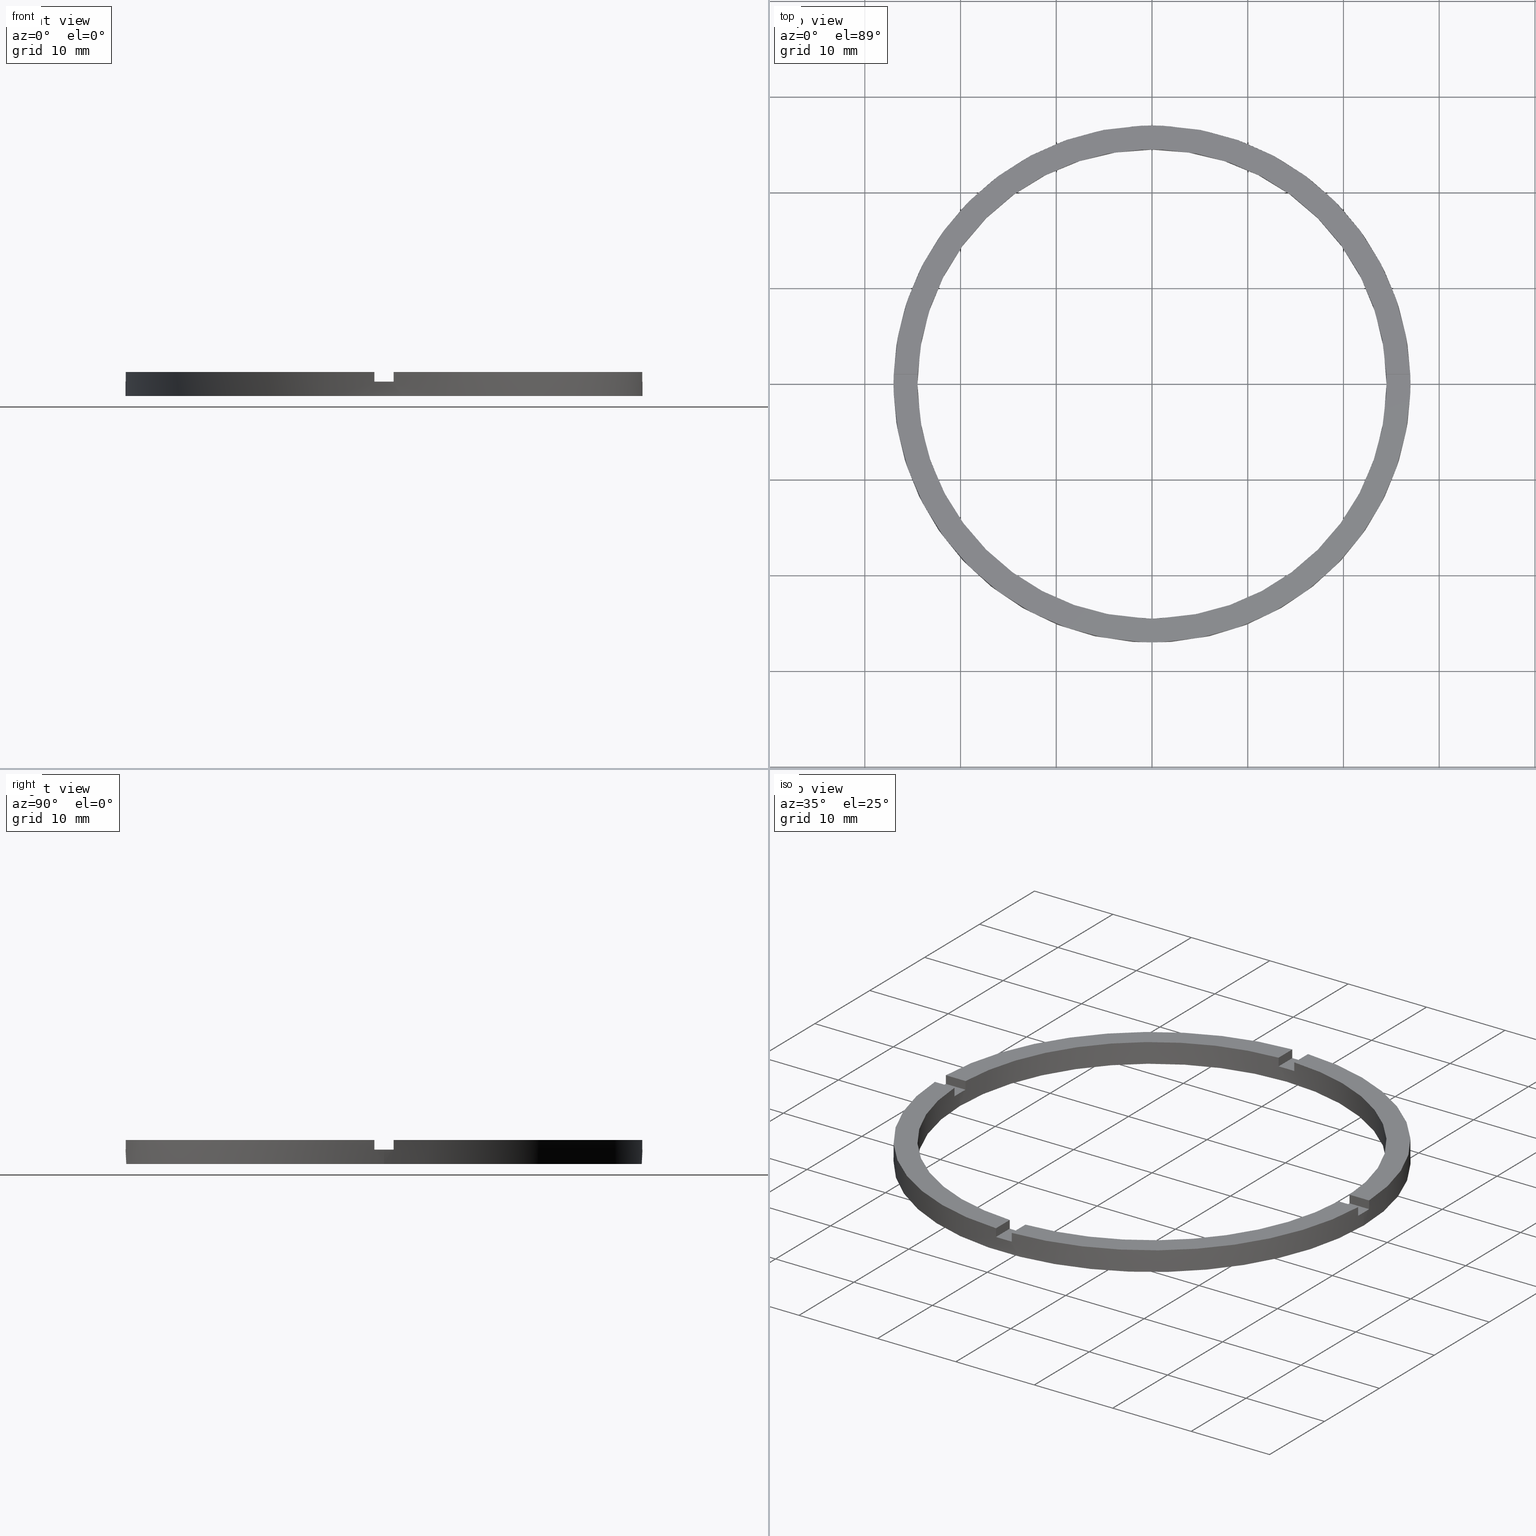
[diagram: canonical four-view strip — front | top / right | iso, engineering-drawing reading convention]
A machine part, canonical four-view strip (front | top / right | iso — engineering-drawing reading convention). The complete STEP part file that produces these views, byte-faithful:
ISO-10303-21;
HEADER;
FILE_DESCRIPTION (( 'STEP AP203' ),
    '1' );
FILE_NAME ('514112.step',
    '2024-12-26T02:38:39',
    ( 'MSI' ),
    ( '' ),
    'SwSTEP 2.0',
    'SolidWorks 2020',
    '' );
FILE_SCHEMA (( 'CONFIG_CONTROL_DESIGN' ));
ENDSEC;

DATA;
#1 = CARTESIAN_POINT ( 'NONE',  ( 27.00000000000000000, 3.306546357697853733E-15, 0.000000000000000000 ) ) ;
#2 = CARTESIAN_POINT ( 'NONE',  ( -26.98147512646408330, 0.9999999999999733546, 2.500000000000000000 ) ) ;
#3 = EDGE_CURVE ( 'NONE', #323, #181, #574, .T. ) ;
#4 = DIRECTION ( 'NONE',  ( 1.000000000000000000, 4.336808689942018352E-17, 0.000000000000000000 ) ) ;
#5 = CARTESIAN_POINT ( 'NONE',  ( 0.000000000000000000, 0.000000000000000000, 1.500000000000000000 ) ) ;
#6 = DIRECTION ( 'NONE',  ( -0.000000000000000000, -0.000000000000000000, -1.000000000000000000 ) ) ;
#7 = CARTESIAN_POINT ( 'NONE',  ( 16.99999999999999289, 0.9999999999998423483, 1.500000000000000000 ) ) ;
#8 = AXIS2_PLACEMENT_3D ( 'NONE', #658, #243, #777 ) ;
#9 = CARTESIAN_POINT ( 'NONE',  ( -27.00000000000000000, 0.000000000000000000, 0.000000000000000000 ) ) ;
#10 = ORIENTED_EDGE ( 'NONE', *, *, #400, .F. ) ;
#11 = CARTESIAN_POINT ( 'NONE',  ( -24.50000000000000000, 0.000000000000000000, 1.500000000000000000 ) ) ;
#12 = ORIENTED_EDGE ( 'NONE', *, *, #577, .T. ) ;
#13 = DIRECTION ( 'NONE',  ( 0.000000000000000000, 0.000000000000000000, -1.000000000000000000 ) ) ;
#14 = DIRECTION ( 'NONE',  ( 0.000000000000000000, 1.000000000000000000, 0.000000000000000000 ) ) ;
#15 = MECHANICAL_CONTEXT ( 'NONE', #71, 'mechanical' ) ;
#16 = DIRECTION ( 'NONE',  ( 1.301042606982605567E-16, -1.000000000000000000, 0.000000000000000000 ) ) ;
#17 = CARTESIAN_POINT ( 'NONE',  ( 0.9999999999999735767, 26.98147512646408330, 2.500000000000000000 ) ) ;
#18 = DIRECTION ( 'NONE',  ( -0.000000000000000000, -1.000000000000000000, -0.000000000000000000 ) ) ;
#19 = ADVANCED_FACE ( 'NONE', ( #45 ), #486, .T. ) ;
#20 = ORIENTED_EDGE ( 'NONE', *, *, #155, .F. ) ;
#21 = ORIENTED_EDGE ( 'NONE', *, *, #646, .T. ) ;
#22 = CARTESIAN_POINT ( 'NONE',  ( -17.00000000000018474, -1.000000000000024869, 1.500000000000000000 ) ) ;
#23 = VERTEX_POINT ( 'NONE', #623 ) ;
#24 = EDGE_CURVE ( 'NONE', #478, #192, #46, .T. ) ;
#25 = AXIS2_PLACEMENT_3D ( 'NONE', #283, #450, #668 ) ;
#26 = DIRECTION ( 'NONE',  ( 0.000000000000000000, -0.000000000000000000, 1.000000000000000000 ) ) ;
#27 = EDGE_CURVE ( 'NONE', #605, #613, #328, .T. ) ;
#28 = CARTESIAN_POINT ( 'NONE',  ( 0.000000000000000000, 0.000000000000000000, 1.500000000000000000 ) ) ;
#29 = DIRECTION ( 'NONE',  ( 1.000000000000000000, 4.336808689942018352E-17, 0.000000000000000000 ) ) ;
#30 = EDGE_CURVE ( 'NONE', #583, #446, #315, .T. ) ;
#31 = EDGE_CURVE ( 'NONE', #613, #605, #335, .T. ) ;
#32 = ORIENTED_EDGE ( 'NONE', *, *, #523, .F. ) ;
#33 = EDGE_CURVE ( 'NONE', #310, #81, #68, .T. ) ;
#34 = CARTESIAN_POINT ( 'NONE',  ( 0.000000000000000000, 0.000000000000000000, 1.500000000000000000 ) ) ;
#35 = AXIS2_PLACEMENT_3D ( 'NONE', #533, #575, #538 ) ;
#36 = CARTESIAN_POINT ( 'NONE',  ( -26.98147512646407975, -1.000000000000026645, 1.500000000000000000 ) ) ;
#37 = LINE ( 'NONE', #642, #61 ) ;
#38 = PRODUCT_DEFINITION_SHAPE ( 'NONE', 'NONE',  #197 ) ;
#39 = CARTESIAN_POINT ( 'NONE',  ( 0.000000000000000000, 0.000000000000000000, 1.500000000000000000 ) ) ;
#40 = CC_DESIGN_PERSON_AND_ORGANIZATION_ASSIGNMENT ( #627, #561, ( #536 ) ) ;
#41 = VECTOR ( 'NONE', #556, 1000.000000000000000 ) ;
#42 = DIRECTION ( 'NONE',  ( 1.000000000000000000, 0.000000000000000000, 0.000000000000000000 ) ) ;
#43 = CARTESIAN_POINT ( 'NONE',  ( -24.47958332978729601, -1.000000000000026201, 2.500000000000000000 ) ) ;
#44 = ORIENTED_EDGE ( 'NONE', *, *, #31, .F. ) ;
#45 = FACE_OUTER_BOUND ( 'NONE', #462, .T. ) ;
#46 = LINE ( 'NONE', #325, #76 ) ;
#47 = DIRECTION ( 'NONE',  ( -0.000000000000000000, -0.000000000000000000, -1.000000000000000000 ) ) ;
#48 = DIRECTION ( 'NONE',  ( 0.000000000000000000, 0.000000000000000000, 1.000000000000000000 ) ) ;
#49 = ORIENTED_EDGE ( 'NONE', *, *, #408, .T. ) ;
#50 = CARTESIAN_POINT ( 'NONE',  ( 0.000000000000000000, 0.000000000000000000, 2.500000000000000000 ) ) ;
#51 = CIRCLE ( 'NONE', #256, 24.50000000000000000 ) ;
#52 = CARTESIAN_POINT ( 'NONE',  ( -1.000000000000026423, 17.00000000000000000, 2.500000000000000000 ) ) ;
#53 = VECTOR ( 'NONE', #123, 1000.000000000000000 ) ;
#54 = APPROVAL_ROLE ( '' ) ;
#55 = ORIENTED_EDGE ( 'NONE', *, *, #693, .T. ) ;
#56 = AXIS2_PLACEMENT_3D ( 'NONE', #5, #206, #505 ) ;
#57 = DIRECTION ( 'NONE',  ( 1.000000000000000000, 0.000000000000000000, 0.000000000000000000 ) ) ;
#58 = ORIENTED_EDGE ( 'NONE', *, *, #274, .F. ) ;
#59 = ORIENTED_EDGE ( 'NONE', *, *, #413, .T. ) ;
#60 = PLANE ( 'NONE',  #351 ) ;
#61 = VECTOR ( 'NONE', #581, 1000.000000000000000 ) ;
#62 = VERTEX_POINT ( 'NONE', #403 ) ;
#63 = EDGE_LOOP ( 'NONE', ( #535, #179, #326, #308 ) ) ;
#64 = EDGE_CURVE ( 'NONE', #332, #717, #37, .T. ) ;
#65 = AXIS2_PLACEMENT_3D ( 'NONE', #164, #648, #276 ) ;
#66 = CARTESIAN_POINT ( 'NONE',  ( 0.000000000000000000, 0.000000000000000000, 2.500000000000000000 ) ) ;
#67 = ORIENTED_EDGE ( 'NONE', *, *, #111, .F. ) ;
#68 = CIRCLE ( 'NONE', #767, 27.00000000000000000 ) ;
#69 = EDGE_CURVE ( 'NONE', #717, #604, #51, .T. ) ;
#70 = ORIENTED_EDGE ( 'NONE', *, *, #748, .F. ) ;
#71 = APPLICATION_CONTEXT ( 'configuration controlled 3d designs of mechanical parts and assemblies' ) ;
#72 = ORIENTED_EDGE ( 'NONE', *, *, #513, .T. ) ;
#73 = PLANE ( 'NONE',  #284 ) ;
#74 = EDGE_LOOP ( 'NONE', ( #307, #433, #269, #570 ) ) ;
#75 = ORIENTED_EDGE ( 'NONE', *, *, #241, .T. ) ;
#76 = VECTOR ( 'NONE', #758, 1000.000000000000000 ) ;
#77 = CARTESIAN_POINT ( 'NONE',  ( 16.99999999999999289, 0.9999999999998423483, 2.500000000000000000 ) ) ;
#78 = DIRECTION ( 'NONE',  ( 0.000000000000000000, 0.000000000000000000, 1.000000000000000000 ) ) ;
#79 = CIRCLE ( 'NONE', #107, 24.50000000000000000 ) ;
#80 = DIRECTION ( 'NONE',  ( -0.000000000000000000, -0.000000000000000000, -1.000000000000000000 ) ) ;
#81 = VERTEX_POINT ( 'NONE', #490 ) ;
#82 = MANIFOLD_SOLID_BREP ( '�г�-����1', #441 ) ;
#83 = ORIENTED_EDGE ( 'NONE', *, *, #87, .F. ) ;
#84 = EDGE_CURVE ( 'NONE', #601, #713, #79, .T. ) ;
#85 = ORIENTED_EDGE ( 'NONE', *, *, #707, .F. ) ;
#86 = ORIENTED_EDGE ( 'NONE', *, *, #219, .F. ) ;
#87 = EDGE_CURVE ( 'NONE', #323, #23, #337, .T. ) ;
#88 = ORIENTED_EDGE ( 'NONE', *, *, #278, .T. ) ;
#89 = ORIENTED_EDGE ( 'NONE', *, *, #707, .T. ) ;
#90 = ORIENTED_EDGE ( 'NONE', *, *, #394, .T. ) ;
#91 = ADVANCED_FACE ( 'NONE', ( #582 ), #537, .F. ) ;
#92 = ORIENTED_EDGE ( 'NONE', *, *, #408, .F. ) ;
#93 = DIRECTION ( 'NONE',  ( 1.734723475976807341E-16, -1.000000000000000000, 0.000000000000000000 ) ) ;
#94 = VERTEX_POINT ( 'NONE', #294 ) ;
#95 = AXIS2_PLACEMENT_3D ( 'NONE', #228, #517, #629 ) ;
#96 = ADVANCED_FACE ( 'NONE', ( #603 ), #496, .F. ) ;
#97 = DIRECTION ( 'NONE',  ( -0.000000000000000000, -0.000000000000000000, -1.000000000000000000 ) ) ;
#98 = PERSON_AND_ORGANIZATION ( #763, #113 ) ;
#99 = LOCAL_TIME ( 10, 38, 39.00000000000000000, #625 ) ;
#100 = DIRECTION ( 'NONE',  ( 0.000000000000000000, 0.000000000000000000, 1.000000000000000000 ) ) ;
#101 = APPROVAL_PERSON_ORGANIZATION ( #364, #226, #563 ) ;
#102 = CARTESIAN_POINT ( 'NONE',  ( 24.47958332978728890, -1.000000000000157208, 2.500000000000000000 ) ) ;
#103 = COORDINATED_UNIVERSAL_TIME_OFFSET ( 8, 0, .AHEAD. ) ;
#104 = DATE_AND_TIME ( #357, #99 ) ;
#105 = FACE_OUTER_BOUND ( 'NONE', #745, .T. ) ;
#106 = CARTESIAN_POINT ( 'NONE',  ( -1.000000000000026423, 17.00000000000000000, 1.500000000000000000 ) ) ;
#107 = AXIS2_PLACEMENT_3D ( 'NONE', #724, #528, #770 ) ;
#108 = COORDINATED_UNIVERSAL_TIME_OFFSET ( 8, 0, .AHEAD. ) ;
#109 = DIRECTION ( 'NONE',  ( 1.000000000000000000, 1.301042606982605567E-16, 0.000000000000000000 ) ) ;
#110 = LINE ( 'NONE', #167, #633 ) ;
#111 = EDGE_CURVE ( 'NONE', #202, #199, #572, .T. ) ;
#112 = PLANE ( 'NONE',  #742 ) ;
#113 = ORGANIZATION ( 'δָ��', 'δָ��', '' ) ;
#114 = AXIS2_PLACEMENT_3D ( 'NONE', #227, #373, #363 ) ;
#115 = DIRECTION ( 'NONE',  ( 0.000000000000000000, 0.000000000000000000, 1.000000000000000000 ) ) ;
#116 = APPROVAL_DATE_TIME ( #640, #634 ) ;
#117 = DIRECTION ( 'NONE',  ( 1.000000000000000000, 0.000000000000000000, 0.000000000000000000 ) ) ;
#118 = CARTESIAN_POINT ( 'NONE',  ( 26.98147512646408686, 0.9999999999998427924, 1.500000000000000000 ) ) ;
#119 = LOCAL_TIME ( 10, 38, 39.00000000000000000, #108 ) ;
#120 = PERSON_AND_ORGANIZATION ( #763, #113 ) ;
#121 = EDGE_CURVE ( 'NONE', #202, #613, #339, .T. ) ;
#122 = LOCAL_TIME ( 10, 38, 39.00000000000000000, #355 ) ;
#123 = DIRECTION ( 'NONE',  ( -0.000000000000000000, -0.000000000000000000, -1.000000000000000000 ) ) ;
#124 = DIRECTION ( 'NONE',  ( 0.000000000000000000, 0.000000000000000000, 1.000000000000000000 ) ) ;
#125 = EDGE_CURVE ( 'NONE', #708, #446, #304, .T. ) ;
#126 = PERSON_AND_ORGANIZATION ( #763, #113 ) ;
#127 = CARTESIAN_POINT ( 'NONE',  ( -1.000000000000026423, 24.47958332978729601, 2.500000000000000000 ) ) ;
#128 = CARTESIAN_POINT ( 'NONE',  ( 0.9999999999998400169, -26.98147512646408686, 2.500000000000000000 ) ) ;
#129 = LINE ( 'NONE', #491, #392 ) ;
#130 = LINE ( 'NONE', #257, #393 ) ;
#131 = CARTESIAN_POINT ( 'NONE',  ( 0.000000000000000000, 0.000000000000000000, 0.000000000000000000 ) ) ;
#132 = LINE ( 'NONE', #759, #681 ) ;
#133 = CARTESIAN_POINT ( 'NONE',  ( -17.00000000000018474, 0.9999999999999751310, 1.500000000000000000 ) ) ;
#134 = DIRECTION ( 'NONE',  ( -1.734723475976807341E-16, 1.000000000000000000, 0.000000000000000000 ) ) ;
#135 = FACE_OUTER_BOUND ( 'NONE', #473, .T. ) ;
#136 = DIRECTION ( 'NONE',  ( -1.000000000000000000, -4.336808689942017120E-17, 0.000000000000000000 ) ) ;
#137 = LINE ( 'NONE', #519, #659 ) ;
#138 = VECTOR ( 'NONE', #461, 1000.000000000000000 ) ;
#139 = CC_DESIGN_SECURITY_CLASSIFICATION ( #666, ( #536 ) ) ;
#140 = CARTESIAN_POINT ( 'NONE',  ( 0.000000000000000000, 0.000000000000000000, 2.500000000000000000 ) ) ;
#141 = VECTOR ( 'NONE', #6, 1000.000000000000000 ) ;
#142 = LINE ( 'NONE', #277, #156 ) ;
#143 = DIRECTION ( 'NONE',  ( 0.000000000000000000, 0.000000000000000000, 1.000000000000000000 ) ) ;
#144 = LINE ( 'NONE', #547, #153 ) ;
#145 = APPROVAL_STATUS ( 'not_yet_approved' ) ;
#146 = EDGE_CURVE ( 'NONE', #62, #322, #306, .T. ) ;
#147 = FACE_OUTER_BOUND ( 'NONE', #599, .T. ) ;
#148 = CIRCLE ( 'NONE', #261, 27.00000000000000000 ) ;
#149 = LINE ( 'NONE', #309, #417 ) ;
#150 = DIRECTION ( 'NONE',  ( 1.000000000000000000, -0.000000000000000000, 0.000000000000000000 ) ) ;
#151 = CYLINDRICAL_SURFACE ( 'NONE', #495, 27.00000000000000000 ) ;
#152 =( LENGTH_UNIT ( ) NAMED_UNIT ( * ) SI_UNIT ( .MILLI., .METRE. ) );
#153 = VECTOR ( 'NONE', #4, 1000.000000000000000 ) ;
#154 = CARTESIAN_POINT ( 'NONE',  ( 0.000000000000000000, 0.000000000000000000, 1.500000000000000000 ) ) ;
#155 = EDGE_CURVE ( 'NONE', #322, #713, #673, .T. ) ;
#156 = VECTOR ( 'NONE', #347, 1000.000000000000000 ) ;
#157 = ADVANCED_FACE ( 'NONE', ( #679 ), #683, .F. ) ;
#158 = LINE ( 'NONE', #499, #415 ) ;
#159 = LINE ( 'NONE', #127, #163 ) ;
#160 = AXIS2_PLACEMENT_3D ( 'NONE', #361, #439, #741 ) ;
#161 = CIRCLE ( 'NONE', #324, 24.50000000000000000 ) ;
#162 = ORIENTED_EDGE ( 'NONE', *, *, #266, .F. ) ;
#163 = VECTOR ( 'NONE', #218, 1000.000000000000000 ) ;
#164 = CARTESIAN_POINT ( 'NONE',  ( 0.000000000000000000, 0.000000000000000000, 0.000000000000000000 ) ) ;
#165 = ORIENTED_EDGE ( 'NONE', *, *, #3, .F. ) ;
#166 = VECTOR ( 'NONE', #16, 1000.000000000000000 ) ;
#167 = CARTESIAN_POINT ( 'NONE',  ( -24.47958332978729601, -1.000000000000026201, 2.500000000000000000 ) ) ;
#168 = AXIS2_PLACEMENT_3D ( 'NONE', #66, #663, #303 ) ;
#169 = VERTEX_POINT ( 'NONE', #504 ) ;
#170 = LINE ( 'NONE', #597, #177 ) ;
#171 = ORIENTED_EDGE ( 'NONE', *, *, #237, .T. ) ;
#172 = FACE_OUTER_BOUND ( 'NONE', #586, .T. ) ;
#173 = ORIENTED_EDGE ( 'NONE', *, *, #748, .T. ) ;
#174 = VECTOR ( 'NONE', #751, 1000.000000000000000 ) ;
#175 = CARTESIAN_POINT ( 'NONE',  ( 0.000000000000000000, 0.000000000000000000, 0.000000000000000000 ) ) ;
#176 = ORIENTED_EDGE ( 'NONE', *, *, #579, .T. ) ;
#177 = VECTOR ( 'NONE', #217, 1000.000000000000000 ) ;
#178 = DIRECTION ( 'NONE',  ( 0.000000000000000000, 0.000000000000000000, 1.000000000000000000 ) ) ;
#179 = ORIENTED_EDGE ( 'NONE', *, *, #778, .T. ) ;
#180 = LINE ( 'NONE', #133, #698 ) ;
#181 = VERTEX_POINT ( 'NONE', #210 ) ;
#182 = CIRCLE ( 'NONE', #755, 24.50000000000000000 ) ;
#183 = PRODUCT_RELATED_PRODUCT_CATEGORY ( 'detail', '', ( #738 ) ) ;
#184 = VERTEX_POINT ( 'NONE', #671 ) ;
#185 = LINE ( 'NONE', #388, #686 ) ;
#186 = DIRECTION ( 'NONE',  ( 0.000000000000000000, 0.000000000000000000, 1.000000000000000000 ) ) ;
#187 = ORIENTED_EDGE ( 'NONE', *, *, #24, .T. ) ;
#188 = CIRCLE ( 'NONE', #114, 27.00000000000000000 ) ;
#189 = ORIENTED_EDGE ( 'NONE', *, *, #554, .F. ) ;
#190 = LINE ( 'NONE', #350, #426 ) ;
#191 = ORIENTED_EDGE ( 'NONE', *, *, #254, .T. ) ;
#192 = VERTEX_POINT ( 'NONE', #290 ) ;
#193 = ORIENTED_EDGE ( 'NONE', *, *, #518, .F. ) ;
#194 = VERTEX_POINT ( 'NONE', #128 ) ;
#195 = CARTESIAN_POINT ( 'NONE',  ( 0.000000000000000000, 0.000000000000000000, 2.500000000000000000 ) ) ;
#196 = ORIENTED_EDGE ( 'NONE', *, *, #27, .T. ) ;
#197 = PRODUCT_DEFINITION ( 'δ֪', '', #536, #534 ) ;
#198 = ORIENTED_EDGE ( 'NONE', *, *, #242, .T. ) ;
#199 = VERTEX_POINT ( 'NONE', #118 ) ;
#200 = VERTEX_POINT ( 'NONE', #781 ) ;
#201 = DIRECTION ( 'NONE',  ( -0.000000000000000000, -0.000000000000000000, -1.000000000000000000 ) ) ;
#202 = VERTEX_POINT ( 'NONE', #358 ) ;
#203 = EDGE_CURVE ( 'NONE', #446, #184, #144, .T. ) ;
#204 = ORIENTED_EDGE ( 'NONE', *, *, #579, .F. ) ;
#205 = EDGE_LOOP ( 'NONE', ( #279, #173, #20, #343 ) ) ;
#206 = DIRECTION ( 'NONE',  ( 0.000000000000000000, 0.000000000000000000, 1.000000000000000000 ) ) ;
#207 = ORIENTED_EDGE ( 'NONE', *, *, #548, .T. ) ;
#208 = ORIENTED_EDGE ( 'NONE', *, *, #543, .T. ) ;
#209 = PLANE ( 'NONE',  #8 ) ;
#210 = CARTESIAN_POINT ( 'NONE',  ( 0.9999999999999735767, 26.98147512646408330, 2.500000000000000000 ) ) ;
#211 = ORIENTED_EDGE ( 'NONE', *, *, #84, .T. ) ;
#212 = ORIENTED_EDGE ( 'NONE', *, *, #234, .F. ) ;
#213 = EDGE_LOOP ( 'NONE', ( #329, #587, #171, #725, #12, #220, #730, #189, #319, #193, #435, #196 ) ) ;
#214 = EDGE_CURVE ( 'NONE', #578, #181, #649, .T. ) ;
#215 = CARTESIAN_POINT ( 'NONE',  ( -17.00000000000018474, -1.000000000000024869, 1.500000000000000000 ) ) ;
#216 = VERTEX_POINT ( 'NONE', #43 ) ;
#217 = DIRECTION ( 'NONE',  ( -1.301042606982605567E-16, 1.000000000000000000, -0.000000000000000000 ) ) ;
#218 = DIRECTION ( 'NONE',  ( -0.000000000000000000, -0.000000000000000000, -1.000000000000000000 ) ) ;
#219 = EDGE_CURVE ( 'NONE', #330, #192, #149, .T. ) ;
#220 = ORIENTED_EDGE ( 'NONE', *, *, #687, .F. ) ;
#221 = EDGE_CURVE ( 'NONE', #199, #593, #402, .T. ) ;
#222 = PLANE ( 'NONE',  #168 ) ;
#223 = CARTESIAN_POINT ( 'NONE',  ( 0.000000000000000000, 0.000000000000000000, 2.500000000000000000 ) ) ;
#224 = AXIS2_PLACEMENT_3D ( 'NONE', #779, #440, #285 ) ;
#225 = DIRECTION ( 'NONE',  ( 1.000000000000000000, 0.000000000000000000, -0.000000000000000000 ) ) ;
#226 = APPROVAL ( #377, 'δָ��' ) ;
#227 = CARTESIAN_POINT ( 'NONE',  ( 0.000000000000000000, 0.000000000000000000, 2.500000000000000000 ) ) ;
#228 = CARTESIAN_POINT ( 'NONE',  ( 0.000000000000000000, 0.000000000000000000, 1.500000000000000000 ) ) ;
#229 = AXIS2_PLACEMENT_3D ( 'NONE', #247, #451, #501 ) ;
#230 = ADVANCED_FACE ( 'NONE', ( #407 ), #375, .F. ) ;
#231 = CALENDAR_DATE ( 2024, 26, 12 ) ;
#232 = CARTESIAN_POINT ( 'NONE',  ( 0.000000000000000000, 0.000000000000000000, 2.500000000000000000 ) ) ;
#233 = ORIENTED_EDGE ( 'NONE', *, *, #254, .F. ) ;
#234 = EDGE_CURVE ( 'NONE', #578, #169, #401, .T. ) ;
#235 = AXIS2_PLACEMENT_3D ( 'NONE', #252, #297, #249 ) ;
#236 = ADVANCED_FACE ( 'NONE', ( #647 ), #60, .F. ) ;
#237 = EDGE_CURVE ( 'NONE', #455, #184, #130, .T. ) ;
#238 = PLANE ( 'NONE',  #559 ) ;
#239 = DIRECTION ( 'NONE',  ( 1.000000000000000000, 0.000000000000000000, 0.000000000000000000 ) ) ;
#240 = APPROVAL_DATE_TIME ( #766, #226 ) ;
#241 = EDGE_CURVE ( 'NONE', #444, #246, #412, .T. ) ;
#242 = EDGE_CURVE ( 'NONE', #94, #181, #132, .T. ) ;
#243 = DIRECTION ( 'NONE',  ( 4.336808689942018352E-17, -1.000000000000000000, 0.000000000000000000 ) ) ;
#244 = EDGE_CURVE ( 'NONE', #200, #722, #137, .T. ) ;
#245 = CARTESIAN_POINT ( 'NONE',  ( -17.00000000000018474, 0.9999999999999751310, 2.500000000000000000 ) ) ;
#246 = VERTEX_POINT ( 'NONE', #265 ) ;
#247 = CARTESIAN_POINT ( 'NONE',  ( 0.000000000000000000, 0.000000000000000000, 2.500000000000000000 ) ) ;
#248 = DIRECTION ( 'NONE',  ( 0.000000000000000000, 0.000000000000000000, 1.000000000000000000 ) ) ;
#249 = DIRECTION ( 'NONE',  ( 1.000000000000000000, 0.000000000000000000, 0.000000000000000000 ) ) ;
#250 = DIRECTION ( 'NONE',  ( 1.000000000000000000, 0.000000000000000000, 0.000000000000000000 ) ) ;
#251 = CARTESIAN_POINT ( 'NONE',  ( -24.50000000000000000, 0.000000000000000000, 2.500000000000000000 ) ) ;
#252 = CARTESIAN_POINT ( 'NONE',  ( 0.000000000000000000, 0.000000000000000000, 2.500000000000000000 ) ) ;
#253 = AXIS2_PLACEMENT_3D ( 'NONE', #154, #483, #268 ) ;
#254 = EDGE_CURVE ( 'NONE', #348, #478, #664, .T. ) ;
#255 = DIRECTION ( 'NONE',  ( 1.000000000000000000, 0.000000000000000000, 0.000000000000000000 ) ) ;
#256 = AXIS2_PLACEMENT_3D ( 'NONE', #175, #143, #732 ) ;
#257 = CARTESIAN_POINT ( 'NONE',  ( 26.98147512646407620, -1.000000000000157208, 2.500000000000000000 ) ) ;
#258 = ADVANCED_FACE ( 'NONE', ( #147 ), #740, .T. ) ;
#259 = CARTESIAN_POINT ( 'NONE',  ( -1.000000000000026423, 24.47958332978729601, 1.500000000000000000 ) ) ;
#260 = EDGE_CURVE ( 'NONE', #722, #716, #661, .T. ) ;
#261 = AXIS2_PLACEMENT_3D ( 'NONE', #195, #591, #117 ) ;
#262 = DIRECTION ( 'NONE',  ( -1.000000000000000000, -4.336808689942017120E-17, -0.000000000000000000 ) ) ;
#263 = DIRECTION ( 'NONE',  ( 0.000000000000000000, 0.000000000000000000, 1.000000000000000000 ) ) ;
#264 = ORIENTED_EDGE ( 'NONE', *, *, #652, .T. ) ;
#265 = CARTESIAN_POINT ( 'NONE',  ( -1.000000000000026423, 24.47958332978729601, 2.500000000000000000 ) ) ;
#266 = EDGE_CURVE ( 'NONE', #62, #216, #129, .T. ) ;
#267 = PERSON_AND_ORGANIZATION_ROLE ( 'creator' ) ;
#268 = DIRECTION ( 'NONE',  ( 1.000000000000000000, 0.000000000000000000, -0.000000000000000000 ) ) ;
#269 = ORIENTED_EDGE ( 'NONE', *, *, #203, .T. ) ;
#270 = APPROVAL_ROLE ( '' ) ;
#271 = DIRECTION ( 'NONE',  ( 1.000000000000000000, 1.734723475976807341E-16, 0.000000000000000000 ) ) ;
#272 = AXIS2_PLACEMENT_3D ( 'NONE', #428, #124, #560 ) ;
#273 = DIRECTION ( 'NONE',  ( 0.000000000000000000, 0.000000000000000000, 1.000000000000000000 ) ) ;
#274 = EDGE_CURVE ( 'NONE', #604, #717, #161, .T. ) ;
#275 = ORIENTED_EDGE ( 'NONE', *, *, #242, .F. ) ;
#276 = DIRECTION ( 'NONE',  ( 1.000000000000000000, 0.000000000000000000, 0.000000000000000000 ) ) ;
#277 = CARTESIAN_POINT ( 'NONE',  ( -1.000000000000026423, 26.98147512646407975, 2.500000000000000000 ) ) ;
#278 = EDGE_CURVE ( 'NONE', #444, #23, #142, .T. ) ;
#279 = ORIENTED_EDGE ( 'NONE', *, *, #266, .T. ) ;
#280 = ORIENTED_EDGE ( 'NONE', *, *, #543, .F. ) ;
#281 = AXIS2_PLACEMENT_3D ( 'NONE', #34, #443, #780 ) ;
#282 = CARTESIAN_POINT ( 'NONE',  ( -1.000000000000160316, -24.47958332978728890, 1.500000000000000000 ) ) ;
#283 = CARTESIAN_POINT ( 'NONE',  ( -1.000000000000161426, -17.00000000000018119, 1.500000000000000000 ) ) ;
#284 = AXIS2_PLACEMENT_3D ( 'NONE', #299, #553, #225 ) ;
#285 = DIRECTION ( 'NONE',  ( 1.000000000000000000, 0.000000000000000000, 0.000000000000000000 ) ) ;
#286 = DIRECTION ( 'NONE',  ( 1.000000000000000000, 0.000000000000000000, 0.000000000000000000 ) ) ;
#287 = DIRECTION ( 'NONE',  ( -1.000000000000000000, -1.734723475976807341E-16, 0.000000000000000000 ) ) ;
#288 = EDGE_CURVE ( 'NONE', #194, #184, #148, .T. ) ;
#289 = CARTESIAN_POINT ( 'NONE',  ( 0.000000000000000000, 0.000000000000000000, 0.000000000000000000 ) ) ;
#290 = CARTESIAN_POINT ( 'NONE',  ( -1.000000000000160094, -26.98147512646407620, 2.500000000000000000 ) ) ;
#291 = ORIENTED_EDGE ( 'NONE', *, *, #577, .F. ) ;
#292 = AXIS2_PLACEMENT_3D ( 'NONE', #131, #760, #305 ) ;
#293 = EDGE_LOOP ( 'NONE', ( #466, #90, #280, #89 ) ) ;
#294 = CARTESIAN_POINT ( 'NONE',  ( 0.9999999999999735767, 24.47958332978729601, 2.500000000000000000 ) ) ;
#295 = DIRECTION ( 'NONE',  ( 1.000000000000000000, 0.000000000000000000, -0.000000000000000000 ) ) ;
#296 = DIRECTION ( 'NONE',  ( -1.000000000000000000, -1.734723475976807341E-16, 0.000000000000000000 ) ) ;
#297 = DIRECTION ( 'NONE',  ( 0.000000000000000000, 0.000000000000000000, 1.000000000000000000 ) ) ;
#298 = APPLICATION_PROTOCOL_DEFINITION ( 'international standard', 'config_control_design', 1994, #71 ) ;
#299 = CARTESIAN_POINT ( 'NONE',  ( 0.000000000000000000, 0.000000000000000000, 2.500000000000000000 ) ) ;
#300 = DIRECTION ( 'NONE',  ( -1.000000000000000000, -1.734723475976807341E-16, 0.000000000000000000 ) ) ;
#301 = CC_DESIGN_PERSON_AND_ORGANIZATION_ASSIGNMENT ( #622, #267, ( #536 ) ) ;
#302 = DIRECTION ( 'NONE',  ( -4.336808689942017120E-17, 1.000000000000000000, 0.000000000000000000 ) ) ;
#303 = DIRECTION ( 'NONE',  ( 1.000000000000000000, 0.000000000000000000, -0.000000000000000000 ) ) ;
#304 = CIRCLE ( 'NONE', #540, 24.50000000000000000 ) ;
#305 = DIRECTION ( 'NONE',  ( 1.000000000000000000, 0.000000000000000000, 0.000000000000000000 ) ) ;
#306 = LINE ( 'NONE', #354, #585 ) ;
#307 = ORIENTED_EDGE ( 'NONE', *, *, #413, .F. ) ;
#308 = ORIENTED_EDGE ( 'NONE', *, *, #312, .F. ) ;
#309 = CARTESIAN_POINT ( 'NONE',  ( -1.000000000000160094, -26.98147512646407620, 2.500000000000000000 ) ) ;
#310 = VERTEX_POINT ( 'NONE', #493 ) ;
#311 = CARTESIAN_POINT ( 'NONE',  ( -1.000000000000160316, -24.47958332978728890, 2.500000000000000000 ) ) ;
#312 = EDGE_CURVE ( 'NONE', #578, #199, #405, .T. ) ;
#313 = APPLICATION_PROTOCOL_DEFINITION ( 'international standard', 'config_control_design', 1994, #765 ) ;
#314 = ORIENTED_EDGE ( 'NONE', *, *, #476, .F. ) ;
#315 = LINE ( 'NONE', #573, #594 ) ;
#316 = CARTESIAN_POINT ( 'NONE',  ( -26.98147512646408330, 0.9999999999999733546, 2.500000000000000000 ) ) ;
#317 = EDGE_CURVE ( 'NONE', #482, #531, #667, .T. ) ;
#318 = ORIENTED_EDGE ( 'NONE', *, *, #30, .F. ) ;
#319 = ORIENTED_EDGE ( 'NONE', *, *, #146, .T. ) ;
#320 = ADVANCED_FACE ( 'NONE', ( #669 ), #209, .F. ) ;
#321 = ORIENTED_EDGE ( 'NONE', *, *, #203, .F. ) ;
#322 = VERTEX_POINT ( 'NONE', #36 ) ;
#323 = VERTEX_POINT ( 'NONE', #356 ) ;
#324 = AXIS2_PLACEMENT_3D ( 'NONE', #289, #432, #42 ) ;
#325 = CARTESIAN_POINT ( 'NONE',  ( -1.000000000000161426, -17.00000000000018119, 2.500000000000000000 ) ) ;
#326 = ORIENTED_EDGE ( 'NONE', *, *, #221, .F. ) ;
#327 = CARTESIAN_POINT ( 'NONE',  ( 0.000000000000000000, 0.000000000000000000, 2.500000000000000000 ) ) ;
#328 = CIRCLE ( 'NONE', #396, 27.00000000000000000 ) ;
#329 = ORIENTED_EDGE ( 'NONE', *, *, #121, .F. ) ;
#330 = VERTEX_POINT ( 'NONE', #406 ) ;
#331 = EDGE_LOOP ( 'NONE', ( #602, #55, #198, #165 ) ) ;
#332 = VERTEX_POINT ( 'NONE', #749 ) ;
#333 = AXIS2_PLACEMENT_3D ( 'NONE', #232, #97, #526 ) ;
#334 = ORIENTED_EDGE ( 'NONE', *, *, #260, .F. ) ;
#335 = CIRCLE ( 'NONE', #65, 27.00000000000000000 ) ;
#336 = ADVANCED_FACE ( 'NONE', ( #389 ), #112, .F. ) ;
#337 = CIRCLE ( 'NONE', #458, 27.00000000000000000 ) ;
#338 = CARTESIAN_POINT ( 'NONE',  ( 0.000000000000000000, 0.000000000000000000, 1.500000000000000000 ) ) ;
#339 = LINE ( 'NONE', #545, #53 ) ;
#340 = ORIENTED_EDGE ( 'NONE', *, *, #33, .T. ) ;
#341 = DIRECTION ( 'NONE',  ( 1.000000000000000000, 0.000000000000000000, 0.000000000000000000 ) ) ;
#342 = ORIENTED_EDGE ( 'NONE', *, *, #84, .F. ) ;
#343 = ORIENTED_EDGE ( 'NONE', *, *, #146, .F. ) ;
#344 = ORIENTED_EDGE ( 'NONE', *, *, #69, .F. ) ;
#345 = AXIS2_PLACEMENT_3D ( 'NONE', #718, #273, #488 ) ;
#346 = ORIENTED_EDGE ( 'NONE', *, *, #244, .F. ) ;
#347 = DIRECTION ( 'NONE',  ( -0.000000000000000000, -0.000000000000000000, -1.000000000000000000 ) ) ;
#348 = VERTEX_POINT ( 'NONE', #282 ) ;
#349 = EDGE_CURVE ( 'NONE', #310, #716, #409, .T. ) ;
#350 = CARTESIAN_POINT ( 'NONE',  ( 0.9999999999999735767, 17.00000000000000000, 1.500000000000000000 ) ) ;
#351 = AXIS2_PLACEMENT_3D ( 'NONE', #7, #302, #136 ) ;
#352 = DIRECTION ( 'NONE',  ( -1.000000000000000000, 0.000000000000000000, 0.000000000000000000 ) ) ;
#353 = CYLINDRICAL_SURFACE ( 'NONE', #333, 24.50000000000000000 ) ;
#354 = CARTESIAN_POINT ( 'NONE',  ( -26.98147512646407975, -1.000000000000026645, 2.500000000000000000 ) ) ;
#355 = COORDINATED_UNIVERSAL_TIME_OFFSET ( 8, 0, .AHEAD. ) ;
#356 = CARTESIAN_POINT ( 'NONE',  ( 0.9999999999999735767, 26.98147512646408330, 1.500000000000000000 ) ) ;
#357 = CALENDAR_DATE ( 2024, 26, 12 ) ;
#358 = CARTESIAN_POINT ( 'NONE',  ( 27.00000000000000000, 3.306546357697853733E-15, 1.500000000000000000 ) ) ;
#359 = DATE_AND_TIME ( #380, #119 ) ;
#360 = APPROVAL_DATE_TIME ( #621, #390 ) ;
#361 = CARTESIAN_POINT ( 'NONE',  ( 0.000000000000000000, 0.000000000000000000, 1.500000000000000000 ) ) ;
#362 = LOCAL_TIME ( 10, 38, 39.00000000000000000, #103 ) ;
#363 = DIRECTION ( 'NONE',  ( 1.000000000000000000, 0.000000000000000000, 0.000000000000000000 ) ) ;
#364 = PERSON_AND_ORGANIZATION ( #763, #113 ) ;
#365 = ADVANCED_BREP_SHAPE_REPRESENTATION ( '514112', ( #82, #292 ), #628 ) ;
#366 = AXIS2_PLACEMENT_3D ( 'NONE', #774, #754, #255 ) ;
#367 = DIRECTION ( 'NONE',  ( 0.000000000000000000, 1.000000000000000000, 0.000000000000000000 ) ) ;
#368 = CARTESIAN_POINT ( 'NONE',  ( -1.000000000000026423, 17.00000000000000000, 1.500000000000000000 ) ) ;
#369 = FACE_BOUND ( 'NONE', #425, .T. ) ;
#370 = DIRECTION ( 'NONE',  ( 0.000000000000000000, 0.000000000000000000, 1.000000000000000000 ) ) ;
#371 = LINE ( 'NONE', #524, #637 ) ;
#372 = CIRCLE ( 'NONE', #429, 24.50000000000000000 ) ;
#373 = DIRECTION ( 'NONE',  ( 0.000000000000000000, 0.000000000000000000, 1.000000000000000000 ) ) ;
#374 = CC_DESIGN_APPROVAL ( #390, ( #536 ) ) ;
#375 = PLANE ( 'NONE',  #690 ) ;
#376 = VECTOR ( 'NONE', #769, 1000.000000000000000 ) ;
#377 = APPROVAL_STATUS ( 'not_yet_approved' ) ;
#378 = COORDINATED_UNIVERSAL_TIME_OFFSET ( 8, 0, .AHEAD. ) ;
#379 = UNCERTAINTY_MEASURE_WITH_UNIT (LENGTH_MEASURE( 1.000000000000000082E-05 ), #152, 'distance_accuracy_value', 'NONE');
#380 = CALENDAR_DATE ( 2024, 26, 12 ) ;
#381 = CARTESIAN_POINT ( 'NONE',  ( -24.47958332978729601, -1.000000000000026201, 1.500000000000000000 ) ) ;
#382 = PERSON_AND_ORGANIZATION ( #763, #113 ) ;
#383 = DIRECTION ( 'NONE',  ( 0.000000000000000000, 0.000000000000000000, 1.000000000000000000 ) ) ;
#384 = CALENDAR_DATE ( 2024, 26, 12 ) ;
#385 = DATE_TIME_ROLE ( 'creation_date' ) ;
#386 = ADVANCED_FACE ( 'NONE', ( #416 ), #151, .T. ) ;
#387 = VECTOR ( 'NONE', #644, 1000.000000000000000 ) ;
#388 = CARTESIAN_POINT ( 'NONE',  ( 0.9999999999999735767, 24.47958332978729601, 2.500000000000000000 ) ) ;
#389 = FACE_OUTER_BOUND ( 'NONE', #464, .T. ) ;
#390 = APPROVAL ( #145, 'δָ��' ) ;
#391 = LINE ( 'NONE', #729, #651 ) ;
#392 = VECTOR ( 'NONE', #530, 1000.000000000000000 ) ;
#393 = VECTOR ( 'NONE', #370, 1000.000000000000000 ) ;
#394 = EDGE_CURVE ( 'NONE', #782, #721, #158, .T. ) ;
#395 = LINE ( 'NONE', #368, #138 ) ;
#396 = AXIS2_PLACEMENT_3D ( 'NONE', #532, #186, #239 ) ;
#397 = VECTOR ( 'NONE', #549, 1000.000000000000000 ) ;
#398 = DIRECTION ( 'NONE',  ( -0.000000000000000000, -0.000000000000000000, -1.000000000000000000 ) ) ;
#399 = VECTOR ( 'NONE', #296, 1000.000000000000000 ) ;
#400 = EDGE_CURVE ( 'NONE', #246, #722, #674, .T. ) ;
#401 = LINE ( 'NONE', #77, #672 ) ;
#402 = LINE ( 'NONE', #472, #662 ) ;
#403 = CARTESIAN_POINT ( 'NONE',  ( -26.98147512646407975, -1.000000000000026645, 2.500000000000000000 ) ) ;
#404 = VECTOR ( 'NONE', #18, 1000.000000000000000 ) ;
#405 = LINE ( 'NONE', #420, #677 ) ;
#406 = CARTESIAN_POINT ( 'NONE',  ( -1.000000000000160094, -26.98147512646407620, 1.500000000000000000 ) ) ;
#407 = FACE_OUTER_BOUND ( 'NONE', #331, .T. ) ;
#408 = EDGE_CURVE ( 'NONE', #246, #531, #159, .T. ) ;
#409 = LINE ( 'NONE', #2, #419 ) ;
#410 = DIRECTION ( 'NONE',  ( 1.000000000000000000, 0.000000000000000000, 0.000000000000000000 ) ) ;
#411 = EDGE_CURVE ( 'NONE', #601, #604, #422, .T. ) ;
#412 = LINE ( 'NONE', #52, #404 ) ;
#413 = EDGE_CURVE ( 'NONE', #583, #455, #391, .T. ) ;
#414 = PLANE ( 'NONE',  #366 ) ;
#415 = VECTOR ( 'NONE', #544, 1000.000000000000000 ) ;
#416 = FACE_OUTER_BOUND ( 'NONE', #213, .T. ) ;
#417 = VECTOR ( 'NONE', #383, 1000.000000000000000 ) ;
#418 = ORIENTED_EDGE ( 'NONE', *, *, #31, .T. ) ;
#419 = VECTOR ( 'NONE', #773, 1000.000000000000000 ) ;
#420 = CARTESIAN_POINT ( 'NONE',  ( 26.98147512646408686, 0.9999999999998427924, 2.500000000000000000 ) ) ;
#421 = ORIENTED_EDGE ( 'NONE', *, *, #411, .T. ) ;
#422 = LINE ( 'NONE', #251, #387 ) ;
#423 = ORIENTED_EDGE ( 'NONE', *, *, #646, .F. ) ;
#424 = CIRCLE ( 'NONE', #224, 27.00000000000000000 ) ;
#425 = EDGE_LOOP ( 'NONE', ( #448, #711 ) ) ;
#426 = VECTOR ( 'NONE', #367, 1000.000000000000000 ) ;
#427 = DIRECTION ( 'NONE',  ( -1.301042606982605567E-16, 1.000000000000000000, 0.000000000000000000 ) ) ;
#428 = CARTESIAN_POINT ( 'NONE',  ( 0.000000000000000000, 0.000000000000000000, 2.500000000000000000 ) ) ;
#429 = AXIS2_PLACEMENT_3D ( 'NONE', #327, #178, #712 ) ;
#430 = EDGE_LOOP ( 'NONE', ( #697, #552, #542, #291 ) ) ;
#431 = FACE_OUTER_BOUND ( 'NONE', #588, .T. ) ;
#432 = DIRECTION ( 'NONE',  ( 0.000000000000000000, 0.000000000000000000, 1.000000000000000000 ) ) ;
#433 = ORIENTED_EDGE ( 'NONE', *, *, #30, .T. ) ;
#434 = CIRCLE ( 'NONE', #656, 24.50000000000000000 ) ;
#435 = ORIENTED_EDGE ( 'NONE', *, *, #771, .T. ) ;
#436 = CIRCLE ( 'NONE', #229, 24.50000000000000000 ) ;
#437 = ORIENTED_EDGE ( 'NONE', *, *, #516, .T. ) ;
#438 = CYLINDRICAL_SURFACE ( 'NONE', #619, 27.00000000000000000 ) ;
#439 = DIRECTION ( 'NONE',  ( 0.000000000000000000, 0.000000000000000000, 1.000000000000000000 ) ) ;
#440 = DIRECTION ( 'NONE',  ( 0.000000000000000000, 0.000000000000000000, 1.000000000000000000 ) ) ;
#441 = CLOSED_SHELL ( 'NONE', ( #762, #515, #484, #567, #510, #520, #723, #386, #157, #772, #487, #258, #96, #91, #467, #236, #320, #715, #336, #230, #19 ) ) ;
#442 = CIRCLE ( 'NONE', #95, 27.00000000000000000 ) ;
#443 = DIRECTION ( 'NONE',  ( 0.000000000000000000, 0.000000000000000000, 1.000000000000000000 ) ) ;
#444 = VERTEX_POINT ( 'NONE', #584 ) ;
#445 = LINE ( 'NONE', #761, #166 ) ;
#446 = VERTEX_POINT ( 'NONE', #102 ) ;
#447 = CIRCLE ( 'NONE', #56, 24.50000000000000000 ) ;
#448 = ORIENTED_EDGE ( 'NONE', *, *, #274, .T. ) ;
#449 = LINE ( 'NONE', #684, #174 ) ;
#450 = DIRECTION ( 'NONE',  ( -1.000000000000000000, -1.301042606982605567E-16, 0.000000000000000000 ) ) ;
#451 = DIRECTION ( 'NONE',  ( 0.000000000000000000, 0.000000000000000000, 1.000000000000000000 ) ) ;
#452 = ORIENTED_EDGE ( 'NONE', *, *, #244, .T. ) ;
#453 = CARTESIAN_POINT ( 'NONE',  ( 0.9999999999998397948, -24.47958332978729956, 2.500000000000000000 ) ) ;
#454 = EDGE_LOOP ( 'NONE', ( #592, #207, #692, #176, #680, #600, #92, #614, #346, #699, #421, #344 ) ) ;
#455 = VERTEX_POINT ( 'NONE', #736 ) ;
#456 = DIRECTION ( 'NONE',  ( -1.000000000000000000, -4.336808689942017120E-17, -0.000000000000000000 ) ) ;
#457 = ORIENTED_EDGE ( 'NONE', *, *, #518, .T. ) ;
#458 = AXIS2_PLACEMENT_3D ( 'NONE', #28, #595, #250 ) ;
#459 = CARTESIAN_POINT ( 'NONE',  ( 0.000000000000000000, 0.000000000000000000, 1.500000000000000000 ) ) ;
#460 = ORIENTED_EDGE ( 'NONE', *, *, #241, .F. ) ;
#461 = DIRECTION ( 'NONE',  ( -0.000000000000000000, -1.000000000000000000, -0.000000000000000000 ) ) ;
#462 = EDGE_LOOP ( 'NONE', ( #783, #682, #576, #719 ) ) ;
#463 = CARTESIAN_POINT ( 'NONE',  ( 0.000000000000000000, 0.000000000000000000, 1.500000000000000000 ) ) ;
#464 = EDGE_LOOP ( 'NONE', ( #75, #49, #529, #571 ) ) ;
#465 = CARTESIAN_POINT ( 'NONE',  ( 0.9999999999998400169, -26.98147512646408686, 1.500000000000000000 ) ) ;
#466 = ORIENTED_EDGE ( 'NONE', *, *, #687, .T. ) ;
#467 = ADVANCED_FACE ( 'NONE', ( #653 ), #414, .T. ) ;
#468 = AXIS2_PLACEMENT_3D ( 'NONE', #676, #134, #300 ) ;
#469 = DIRECTION ( 'NONE',  ( -1.000000000000000000, 0.000000000000000000, 0.000000000000000000 ) ) ;
#470 = ORIENTED_EDGE ( 'NONE', *, *, #214, .F. ) ;
#471 = ORIENTED_EDGE ( 'NONE', *, *, #33, .F. ) ;
#472 = CARTESIAN_POINT ( 'NONE',  ( 16.99999999999999289, 0.9999999999998423483, 1.500000000000000000 ) ) ;
#473 = EDGE_LOOP ( 'NONE', ( #460, #72, #334, #10 ) ) ;
#474 = EDGE_LOOP ( 'NONE', ( #423, #452, #609, #710 ) ) ;
#475 = PLANE ( 'NONE',  #253 ) ;
#476 = EDGE_CURVE ( 'NONE', #708, #721, #654, .T. ) ;
#477 = ORIENTED_EDGE ( 'NONE', *, *, #771, .F. ) ;
#478 = VERTEX_POINT ( 'NONE', #618 ) ;
#479 = DIRECTION ( 'NONE',  ( 0.000000000000000000, 0.000000000000000000, 1.000000000000000000 ) ) ;
#480 = ORIENTED_EDGE ( 'NONE', *, *, #27, .F. ) ;
#481 = PERSON_AND_ORGANIZATION_ROLE ( 'design_owner' ) ;
#482 = VERTEX_POINT ( 'NONE', #506 ) ;
#483 = DIRECTION ( 'NONE',  ( 0.000000000000000000, 0.000000000000000000, 1.000000000000000000 ) ) ;
#484 = ADVANCED_FACE ( 'NONE', ( #135 ), #555, .T. ) ;
#485 = CC_DESIGN_DATE_AND_TIME_ASSIGNMENT ( #359, #385, ( #197 ) ) ;
#486 = PLANE ( 'NONE',  #566 ) ;
#487 = ADVANCED_FACE ( 'NONE', ( #657 ), #611, .F. ) ;
#488 = DIRECTION ( 'NONE',  ( 1.000000000000000000, 0.000000000000000000, -0.000000000000000000 ) ) ;
#489 = EDGE_CURVE ( 'NONE', #23, #531, #395, .T. ) ;
#490 = CARTESIAN_POINT ( 'NONE',  ( -27.00000000000000000, 0.000000000000000000, 1.500000000000000000 ) ) ;
#491 = CARTESIAN_POINT ( 'NONE',  ( -17.00000000000018474, -1.000000000000024869, 2.500000000000000000 ) ) ;
#492 = DIRECTION ( 'NONE',  ( 0.000000000000000000, 0.000000000000000000, 1.000000000000000000 ) ) ;
#493 = CARTESIAN_POINT ( 'NONE',  ( -26.98147512646408330, 0.9999999999999733546, 1.500000000000000000 ) ) ;
#494 = DIRECTION ( 'NONE',  ( -0.000000000000000000, -0.000000000000000000, -1.000000000000000000 ) ) ;
#495 = AXIS2_PLACEMENT_3D ( 'NONE', #650, #201, #352 ) ;
#496 = PLANE ( 'NONE',  #739 ) ;
#497 = ORIENTED_EDGE ( 'NONE', *, *, #513, .F. ) ;
#498 = PLANE ( 'NONE',  #527 ) ;
#499 = CARTESIAN_POINT ( 'NONE',  ( 0.9999999999998386846, -17.00000000000018119, 1.500000000000000000 ) ) ;
#500 = ORIENTED_EDGE ( 'NONE', *, *, #111, .T. ) ;
#501 = DIRECTION ( 'NONE',  ( 1.000000000000000000, 0.000000000000000000, 0.000000000000000000 ) ) ;
#502 = ORIENTED_EDGE ( 'NONE', *, *, #221, .T. ) ;
#503 = DIRECTION ( 'NONE',  ( -1.000000000000000000, 0.000000000000000000, 0.000000000000000000 ) ) ;
#504 = CARTESIAN_POINT ( 'NONE',  ( 24.47958332978729956, 0.9999999999998427924, 2.500000000000000000 ) ) ;
#505 = DIRECTION ( 'NONE',  ( 1.000000000000000000, 0.000000000000000000, 0.000000000000000000 ) ) ;
#506 = CARTESIAN_POINT ( 'NONE',  ( 0.9999999999999735767, 24.47958332978729601, 1.500000000000000000 ) ) ;
#507 =( NAMED_UNIT ( * ) PLANE_ANGLE_UNIT ( ) SI_UNIT ( $, .RADIAN. ) );
#508 = CC_DESIGN_PERSON_AND_ORGANIZATION_ASSIGNMENT ( #120, #481, ( #738 ) ) ;
#509 = DIRECTION ( 'NONE',  ( 1.000000000000000000, 0.000000000000000000, 0.000000000000000000 ) ) ;
#510 = ADVANCED_FACE ( 'NONE', ( #660 ), #222, .T. ) ;
#511 = DIRECTION ( 'NONE',  ( 1.000000000000000000, 0.000000000000000000, -0.000000000000000000 ) ) ;
#512 = DATE_TIME_ROLE ( 'classification_date' ) ;
#513 = EDGE_CURVE ( 'NONE', #444, #716, #188, .T. ) ;
#514 = DIRECTION ( 'NONE',  ( -0.000000000000000000, 0.000000000000000000, 1.000000000000000000 ) ) ;
#515 = ADVANCED_FACE ( 'NONE', ( #700 ), #438, .T. ) ;
#516 = EDGE_CURVE ( 'NONE', #455, #202, #424, .T. ) ;
#517 = DIRECTION ( 'NONE',  ( -0.000000000000000000, 0.000000000000000000, 1.000000000000000000 ) ) ;
#518 = EDGE_CURVE ( 'NONE', #81, #322, #702, .T. ) ;
#519 = CARTESIAN_POINT ( 'NONE',  ( -24.47958332978729601, 0.9999999999999737987, 2.500000000000000000 ) ) ;
#520 = ADVANCED_FACE ( 'NONE', ( #689 ), #73, .T. ) ;
#521 = PERSON_AND_ORGANIZATION_ROLE ( 'classification_officer' ) ;
#522 = CARTESIAN_POINT ( 'NONE',  ( 24.50000000000000000, 3.000384657911015469E-15, 0.000000000000000000 ) ) ;
#523 = EDGE_CURVE ( 'NONE', #194, #708, #170, .T. ) ;
#524 = CARTESIAN_POINT ( 'NONE',  ( 24.47958332978729956, 0.9999999999998427924, 2.500000000000000000 ) ) ;
#525 = AXIS2_PLACEMENT_3D ( 'NONE', #39, #48, #670 ) ;
#526 = DIRECTION ( 'NONE',  ( -1.000000000000000000, 0.000000000000000000, 0.000000000000000000 ) ) ;
#527 = AXIS2_PLACEMENT_3D ( 'NONE', #617, #675, #295 ) ;
#528 = DIRECTION ( 'NONE',  ( 0.000000000000000000, 0.000000000000000000, 1.000000000000000000 ) ) ;
#529 = ORIENTED_EDGE ( 'NONE', *, *, #489, .F. ) ;
#530 = DIRECTION ( 'NONE',  ( 1.000000000000000000, 1.734723475976807341E-16, -0.000000000000000000 ) ) ;
#531 = VERTEX_POINT ( 'NONE', #259 ) ;
#532 = CARTESIAN_POINT ( 'NONE',  ( 0.000000000000000000, 0.000000000000000000, 0.000000000000000000 ) ) ;
#533 = CARTESIAN_POINT ( 'NONE',  ( 0.000000000000000000, 0.000000000000000000, 1.500000000000000000 ) ) ;
#534 = DESIGN_CONTEXT ( 'detailed design', #765, 'design' ) ;
#535 = ORIENTED_EDGE ( 'NONE', *, *, #234, .T. ) ;
#536 = PRODUCT_DEFINITION_FORMATION_WITH_SPECIFIED_SOURCE ( '�κ�', '', #738, .NOT_KNOWN. ) ;
#537 = PLANE ( 'NONE',  #25 ) ;
#538 = DIRECTION ( 'NONE',  ( 1.000000000000000000, 0.000000000000000000, 0.000000000000000000 ) ) ;
#539 = EDGE_CURVE ( 'NONE', #482, #323, #190, .T. ) ;
#540 = AXIS2_PLACEMENT_3D ( 'NONE', #746, #775, #286 ) ;
#541 = CARTESIAN_POINT ( 'NONE',  ( -24.50000000000000000, 0.000000000000000000, 0.000000000000000000 ) ) ;
#542 = ORIENTED_EDGE ( 'NONE', *, *, #394, .F. ) ;
#543 = EDGE_CURVE ( 'NONE', #348, #721, #434, .T. ) ;
#544 = DIRECTION ( 'NONE',  ( -1.301042606982605567E-16, 1.000000000000000000, -0.000000000000000000 ) ) ;
#545 = CARTESIAN_POINT ( 'NONE',  ( 27.00000000000000000, 3.306546357697853733E-15, 2.500000000000000000 ) ) ;
#546 = DIRECTION ( 'NONE',  ( 0.000000000000000000, 0.000000000000000000, 1.000000000000000000 ) ) ;
#547 = CARTESIAN_POINT ( 'NONE',  ( 16.99999999999999645, -1.000000000000157652, 2.500000000000000000 ) ) ;
#548 = EDGE_CURVE ( 'NONE', #332, #593, #695, .T. ) ;
#549 = DIRECTION ( 'NONE',  ( 1.000000000000000000, 1.734723475976807341E-16, -0.000000000000000000 ) ) ;
#550 = DIRECTION ( 'NONE',  ( 1.000000000000000000, 0.000000000000000000, 0.000000000000000000 ) ) ;
#551 =( NAMED_UNIT ( * ) SI_UNIT ( $, .STERADIAN. ) SOLID_ANGLE_UNIT ( ) );
#552 = ORIENTED_EDGE ( 'NONE', *, *, #476, .T. ) ;
#553 = DIRECTION ( 'NONE',  ( 0.000000000000000000, 0.000000000000000000, 1.000000000000000000 ) ) ;
#554 = EDGE_CURVE ( 'NONE', #62, #192, #705, .T. ) ;
#555 = PLANE ( 'NONE',  #569 ) ;
#556 = DIRECTION ( 'NONE',  ( 0.000000000000000000, 0.000000000000000000, 1.000000000000000000 ) ) ;
#557 = APPROVAL_STATUS ( 'not_yet_approved' ) ;
#558 = ORIENTED_EDGE ( 'NONE', *, *, #155, .T. ) ;
#559 = AXIS2_PLACEMENT_3D ( 'NONE', #22, #93, #271 ) ;
#560 = DIRECTION ( 'NONE',  ( 1.000000000000000000, 0.000000000000000000, 0.000000000000000000 ) ) ;
#561 = PERSON_AND_ORGANIZATION_ROLE ( 'design_supplier' ) ;
#562 = CARTESIAN_POINT ( 'NONE',  ( -24.47958332978729601, 0.9999999999999737987, 2.500000000000000000 ) ) ;
#563 = APPROVAL_ROLE ( '' ) ;
#564 = CC_DESIGN_APPROVAL ( #226, ( #666 ) ) ;
#565 = ORIENTED_EDGE ( 'NONE', *, *, #554, .T. ) ;
#566 = AXIS2_PLACEMENT_3D ( 'NONE', #463, #26, #696 ) ;
#567 = ADVANCED_FACE ( 'NONE', ( #172 ), #498, .T. ) ;
#568 = PLANE ( 'NONE',  #345 ) ;
#569 = AXIS2_PLACEMENT_3D ( 'NONE', #223, #752, #511 ) ;
#570 = ORIENTED_EDGE ( 'NONE', *, *, #237, .F. ) ;
#571 = ORIENTED_EDGE ( 'NONE', *, *, #278, .F. ) ;
#572 = CIRCLE ( 'NONE', #160, 27.00000000000000000 ) ;
#573 = CARTESIAN_POINT ( 'NONE',  ( 24.47958332978728890, -1.000000000000157208, 2.500000000000000000 ) ) ;
#574 = LINE ( 'NONE', #17, #41 ) ;
#575 = DIRECTION ( 'NONE',  ( 0.000000000000000000, -0.000000000000000000, 1.000000000000000000 ) ) ;
#576 = ORIENTED_EDGE ( 'NONE', *, *, #317, .F. ) ;
#577 = EDGE_CURVE ( 'NONE', #194, #782, #449, .T. ) ;
#578 = VERTEX_POINT ( 'NONE', #753 ) ;
#579 = EDGE_CURVE ( 'NONE', #169, #94, #436, .T. ) ;
#580 = ORIENTED_EDGE ( 'NONE', *, *, #411, .F. ) ;
#581 = DIRECTION ( 'NONE',  ( -0.000000000000000000, -0.000000000000000000, -1.000000000000000000 ) ) ;
#582 = FACE_OUTER_BOUND ( 'NONE', #612, .T. ) ;
#583 = VERTEX_POINT ( 'NONE', #747 ) ;
#584 = CARTESIAN_POINT ( 'NONE',  ( -1.000000000000026423, 26.98147512646407975, 2.500000000000000000 ) ) ;
#585 = VECTOR ( 'NONE', #47, 1000.000000000000000 ) ;
#586 = EDGE_LOOP ( 'NONE', ( #275, #204, #212, #685 ) ) ;
#587 = ORIENTED_EDGE ( 'NONE', *, *, #516, .F. ) ;
#588 = EDGE_LOOP ( 'NONE', ( #437, #500, #502, #726, #688, #59 ) ) ;
#589 = DIRECTION ( 'NONE',  ( -0.000000000000000000, -0.000000000000000000, -1.000000000000000000 ) ) ;
#590 = ORIENTED_EDGE ( 'NONE', *, *, #750, .T. ) ;
#591 = DIRECTION ( 'NONE',  ( 0.000000000000000000, 0.000000000000000000, 1.000000000000000000 ) ) ;
#592 = ORIENTED_EDGE ( 'NONE', *, *, #64, .F. ) ;
#593 = VERTEX_POINT ( 'NONE', #756 ) ;
#594 = VECTOR ( 'NONE', #492, 1000.000000000000000 ) ;
#595 = DIRECTION ( 'NONE',  ( 0.000000000000000000, -0.000000000000000000, 1.000000000000000000 ) ) ;
#596 = ORIENTED_EDGE ( 'NONE', *, *, #3, .T. ) ;
#597 = CARTESIAN_POINT ( 'NONE',  ( 0.9999999999998386846, -17.00000000000018119, 2.500000000000000000 ) ) ;
#598 = ORIENTED_EDGE ( 'NONE', *, *, #121, .T. ) ;
#599 = EDGE_LOOP ( 'NONE', ( #340, #457, #558, #342, #714, #21 ) ) ;
#600 = ORIENTED_EDGE ( 'NONE', *, *, #317, .T. ) ;
#601 = VERTEX_POINT ( 'NONE', #11 ) ;
#602 = ORIENTED_EDGE ( 'NONE', *, *, #539, .F. ) ;
#603 = FACE_OUTER_BOUND ( 'NONE', #430, .T. ) ;
#604 = VERTEX_POINT ( 'NONE', #541 ) ;
#605 = VERTEX_POINT ( 'NONE', #9 ) ;
#606 = EDGE_LOOP ( 'NONE', ( #264, #694, #58, #580, #211, #70, #590, #233, #208, #314, #709, #318 ) ) ;
#607 = EDGE_CURVE ( 'NONE', #200, #601, #447, .T. ) ;
#608 = CARTESIAN_POINT ( 'NONE',  ( 0.000000000000000000, 0.000000000000000000, 2.500000000000000000 ) ) ;
#609 = ORIENTED_EDGE ( 'NONE', *, *, #260, .T. ) ;
#610 = CARTESIAN_POINT ( 'NONE',  ( 0.000000000000000000, 0.000000000000000000, 1.500000000000000000 ) ) ;
#611 = PLANE ( 'NONE',  #468 ) ;
#612 = EDGE_LOOP ( 'NONE', ( #85, #191, #187, #86 ) ) ;
#613 = VERTEX_POINT ( 'NONE', #1 ) ;
#614 = ORIENTED_EDGE ( 'NONE', *, *, #400, .T. ) ;
#615 = AXIS2_PLACEMENT_3D ( 'NONE', #608, #589, #655 ) ;
#616 = SECURITY_CLASSIFICATION_LEVEL ( 'unclassified' ) ;
#617 = CARTESIAN_POINT ( 'NONE',  ( 0.000000000000000000, 0.000000000000000000, 2.500000000000000000 ) ) ;
#618 = CARTESIAN_POINT ( 'NONE',  ( -1.000000000000160316, -24.47958332978728890, 2.500000000000000000 ) ) ;
#619 = AXIS2_PLACEMENT_3D ( 'NONE', #140, #743, #469 ) ;
#620 = CARTESIAN_POINT ( 'NONE',  ( 0.000000000000000000, 0.000000000000000000, 1.500000000000000000 ) ) ;
#621 = DATE_AND_TIME ( #384, #122 ) ;
#622 = PERSON_AND_ORGANIZATION ( #763, #113 ) ;
#623 = CARTESIAN_POINT ( 'NONE',  ( -1.000000000000026423, 26.98147512646407975, 1.500000000000000000 ) ) ;
#624 = CARTESIAN_POINT ( 'NONE',  ( 0.9999999999999735767, 17.00000000000000000, 1.500000000000000000 ) ) ;
#625 = COORDINATED_UNIVERSAL_TIME_OFFSET ( 8, 0, .AHEAD. ) ;
#626 = PERSON_AND_ORGANIZATION_ROLE ( 'creator' ) ;
#627 = PERSON_AND_ORGANIZATION ( #763, #113 ) ;
#628 =( GEOMETRIC_REPRESENTATION_CONTEXT ( 3 ) GLOBAL_UNCERTAINTY_ASSIGNED_CONTEXT ( ( #379 ) ) GLOBAL_UNIT_ASSIGNED_CONTEXT ( ( #152, #507, #551 ) ) REPRESENTATION_CONTEXT ( 'NONE', 'WORKASPACE' ) );
#629 = DIRECTION ( 'NONE',  ( 1.000000000000000000, 0.000000000000000000, 0.000000000000000000 ) ) ;
#630 = FACE_OUTER_BOUND ( 'NONE', #205, .T. ) ;
#631 = PERSON_AND_ORGANIZATION ( #763, #113 ) ;
#632 = CARTESIAN_POINT ( 'NONE',  ( 0.9999999999998397948, -24.47958332978729956, 1.500000000000000000 ) ) ;
#633 = VECTOR ( 'NONE', #398, 1000.000000000000000 ) ;
#634 = APPROVAL ( #557, 'δָ��' ) ;
#635 = CALENDAR_DATE ( 2024, 26, 12 ) ;
#636 = LINE ( 'NONE', #639, #376 ) ;
#637 = VECTOR ( 'NONE', #80, 1000.000000000000000 ) ;
#638 = FACE_OUTER_BOUND ( 'NONE', #606, .T. ) ;
#639 = CARTESIAN_POINT ( 'NONE',  ( -27.00000000000000000, 0.000000000000000000, 2.500000000000000000 ) ) ;
#640 = DATE_AND_TIME ( #635, #643 ) ;
#641 = APPROVAL_PERSON_ORGANIZATION ( #631, #634, #270 ) ;
#642 = CARTESIAN_POINT ( 'NONE',  ( 24.50000000000000000, 3.000384657911015469E-15, 2.500000000000000000 ) ) ;
#643 = LOCAL_TIME ( 10, 38, 39.00000000000000000, #378 ) ;
#644 = DIRECTION ( 'NONE',  ( -0.000000000000000000, -0.000000000000000000, -1.000000000000000000 ) ) ;
#645 = APPROVAL_PERSON_ORGANIZATION ( #382, #390, #54 ) ;
#646 = EDGE_CURVE ( 'NONE', #200, #310, #180, .T. ) ;
#647 = FACE_OUTER_BOUND ( 'NONE', #63, .T. ) ;
#648 = DIRECTION ( 'NONE',  ( 0.000000000000000000, 0.000000000000000000, 1.000000000000000000 ) ) ;
#649 = CIRCLE ( 'NONE', #235, 27.00000000000000000 ) ;
#650 = CARTESIAN_POINT ( 'NONE',  ( 0.000000000000000000, 0.000000000000000000, 2.500000000000000000 ) ) ;
#651 = VECTOR ( 'NONE', #29, 1000.000000000000000 ) ;
#652 = EDGE_CURVE ( 'NONE', #583, #332, #182, .T. ) ;
#653 = FACE_OUTER_BOUND ( 'NONE', #293, .T. ) ;
#654 = LINE ( 'NONE', #453, #141 ) ;
#655 = DIRECTION ( 'NONE',  ( -1.000000000000000000, 0.000000000000000000, 0.000000000000000000 ) ) ;
#656 = AXIS2_PLACEMENT_3D ( 'NONE', #620, #514, #550 ) ;
#657 = FACE_OUTER_BOUND ( 'NONE', #474, .T. ) ;
#658 = CARTESIAN_POINT ( 'NONE',  ( 16.99999999999999645, -1.000000000000157652, 1.500000000000000000 ) ) ;
#659 = VECTOR ( 'NONE', #78, 1000.000000000000000 ) ;
#660 = FACE_OUTER_BOUND ( 'NONE', #704, .T. ) ;
#661 = LINE ( 'NONE', #245, #399 ) ;
#662 = VECTOR ( 'NONE', #262, 1000.000000000000000 ) ;
#663 = DIRECTION ( 'NONE',  ( 0.000000000000000000, 0.000000000000000000, 1.000000000000000000 ) ) ;
#664 = LINE ( 'NONE', #311, #665 ) ;
#665 = VECTOR ( 'NONE', #479, 1000.000000000000000 ) ;
#666 = SECURITY_CLASSIFICATION ( '', '', #616 ) ;
#667 = CIRCLE ( 'NONE', #35, 24.50000000000000000 ) ;
#668 = DIRECTION ( 'NONE',  ( 1.301042606982605567E-16, -1.000000000000000000, 0.000000000000000000 ) ) ;
#669 = FACE_OUTER_BOUND ( 'NONE', #74, .T. ) ;
#670 = DIRECTION ( 'NONE',  ( 1.000000000000000000, 0.000000000000000000, 0.000000000000000000 ) ) ;
#671 = CARTESIAN_POINT ( 'NONE',  ( 26.98147512646407620, -1.000000000000157208, 2.500000000000000000 ) ) ;
#672 = VECTOR ( 'NONE', #456, 1000.000000000000000 ) ;
#673 = LINE ( 'NONE', #215, #397 ) ;
#674 = CIRCLE ( 'NONE', #768, 24.50000000000000000 ) ;
#675 = DIRECTION ( 'NONE',  ( 0.000000000000000000, 0.000000000000000000, 1.000000000000000000 ) ) ;
#676 = CARTESIAN_POINT ( 'NONE',  ( -17.00000000000018474, 0.9999999999999751310, 1.500000000000000000 ) ) ;
#677 = VECTOR ( 'NONE', #494, 1000.000000000000000 ) ;
#678 = CC_DESIGN_DATE_AND_TIME_ASSIGNMENT ( #104, #512, ( #666 ) ) ;
#679 = FACE_OUTER_BOUND ( 'NONE', #454, .T. ) ;
#680 = ORIENTED_EDGE ( 'NONE', *, *, #693, .F. ) ;
#681 = VECTOR ( 'NONE', #14, 1000.000000000000000 ) ;
#682 = ORIENTED_EDGE ( 'NONE', *, *, #489, .T. ) ;
#683 = CYLINDRICAL_SURFACE ( 'NONE', #615, 24.50000000000000000 ) ;
#684 = CARTESIAN_POINT ( 'NONE',  ( 0.9999999999998400169, -26.98147512646408686, 2.500000000000000000 ) ) ;
#685 = ORIENTED_EDGE ( 'NONE', *, *, #214, .T. ) ;
#686 = VECTOR ( 'NONE', #263, 1000.000000000000000 ) ;
#687 = EDGE_CURVE ( 'NONE', #330, #782, #442, .T. ) ;
#688 = ORIENTED_EDGE ( 'NONE', *, *, #652, .F. ) ;
#689 = FACE_OUTER_BOUND ( 'NONE', #731, .T. ) ;
#690 = AXIS2_PLACEMENT_3D ( 'NONE', #624, #150, #13 ) ;
#691 = EDGE_LOOP ( 'NONE', ( #67, #598, #418, #477, #471, #728, #497, #88, #83, #596, #470, #706 ) ) ;
#692 = ORIENTED_EDGE ( 'NONE', *, *, #778, .F. ) ;
#693 = EDGE_CURVE ( 'NONE', #482, #94, #185, .T. ) ;
#694 = ORIENTED_EDGE ( 'NONE', *, *, #64, .T. ) ;
#695 = CIRCLE ( 'NONE', #764, 24.50000000000000000 ) ;
#696 = DIRECTION ( 'NONE',  ( 1.000000000000000000, 0.000000000000000000, -0.000000000000000000 ) ) ;
#697 = ORIENTED_EDGE ( 'NONE', *, *, #523, .T. ) ;
#698 = VECTOR ( 'NONE', #287, 1000.000000000000000 ) ;
#699 = ORIENTED_EDGE ( 'NONE', *, *, #607, .T. ) ;
#700 = FACE_OUTER_BOUND ( 'NONE', #691, .T. ) ;
#701 = ORIENTED_EDGE ( 'NONE', *, *, #125, .F. ) ;
#702 = CIRCLE ( 'NONE', #525, 27.00000000000000000 ) ;
#703 = CARTESIAN_POINT ( 'NONE',  ( 0.9999999999998397948, -24.47958332978729956, 2.500000000000000000 ) ) ;
#704 = EDGE_LOOP ( 'NONE', ( #321, #701, #32, #734 ) ) ;
#705 = CIRCLE ( 'NONE', #272, 27.00000000000000000 ) ;
#706 = ORIENTED_EDGE ( 'NONE', *, *, #312, .T. ) ;
#707 = EDGE_CURVE ( 'NONE', #348, #330, #445, .T. ) ;
#708 = VERTEX_POINT ( 'NONE', #703 ) ;
#709 = ORIENTED_EDGE ( 'NONE', *, *, #125, .T. ) ;
#710 = ORIENTED_EDGE ( 'NONE', *, *, #349, .F. ) ;
#711 = ORIENTED_EDGE ( 'NONE', *, *, #69, .T. ) ;
#712 = DIRECTION ( 'NONE',  ( 1.000000000000000000, 0.000000000000000000, 0.000000000000000000 ) ) ;
#713 = VERTEX_POINT ( 'NONE', #381 ) ;
#714 = ORIENTED_EDGE ( 'NONE', *, *, #607, .F. ) ;
#715 = ADVANCED_FACE ( 'NONE', ( #431 ), #475, .T. ) ;
#716 = VERTEX_POINT ( 'NONE', #316 ) ;
#717 = VERTEX_POINT ( 'NONE', #522 ) ;
#718 = CARTESIAN_POINT ( 'NONE',  ( 0.000000000000000000, 0.000000000000000000, 0.000000000000000000 ) ) ;
#719 = ORIENTED_EDGE ( 'NONE', *, *, #539, .T. ) ;
#720 = CC_DESIGN_PERSON_AND_ORGANIZATION_ASSIGNMENT ( #126, #626, ( #197 ) ) ;
#721 = VERTEX_POINT ( 'NONE', #632 ) ;
#722 = VERTEX_POINT ( 'NONE', #562 ) ;
#723 = ADVANCED_FACE ( 'NONE', ( #105, #369 ), #568, .F. ) ;
#724 = CARTESIAN_POINT ( 'NONE',  ( 0.000000000000000000, 0.000000000000000000, 1.500000000000000000 ) ) ;
#725 = ORIENTED_EDGE ( 'NONE', *, *, #288, .F. ) ;
#726 = ORIENTED_EDGE ( 'NONE', *, *, #548, .F. ) ;
#727 = ORIENTED_EDGE ( 'NONE', *, *, #750, .F. ) ;
#728 = ORIENTED_EDGE ( 'NONE', *, *, #349, .T. ) ;
#729 = CARTESIAN_POINT ( 'NONE',  ( 16.99999999999999645, -1.000000000000157652, 1.500000000000000000 ) ) ;
#730 = ORIENTED_EDGE ( 'NONE', *, *, #219, .T. ) ;
#731 = EDGE_LOOP ( 'NONE', ( #733, #727, #162, #565 ) ) ;
#732 = DIRECTION ( 'NONE',  ( 1.000000000000000000, 0.000000000000000000, 0.000000000000000000 ) ) ;
#733 = ORIENTED_EDGE ( 'NONE', *, *, #24, .F. ) ;
#734 = ORIENTED_EDGE ( 'NONE', *, *, #288, .T. ) ;
#735 = CC_DESIGN_APPROVAL ( #634, ( #197 ) ) ;
#736 = CARTESIAN_POINT ( 'NONE',  ( 26.98147512646407620, -1.000000000000157208, 1.500000000000000000 ) ) ;
#737 = CARTESIAN_POINT ( 'NONE',  ( 0.9999999999998386846, -17.00000000000018119, 1.500000000000000000 ) ) ;
#738 = PRODUCT ( '514112', '514112', '', ( #15 ) ) ;
#739 = AXIS2_PLACEMENT_3D ( 'NONE', #737, #109, #427 ) ;
#740 = PLANE ( 'NONE',  #281 ) ;
#741 = DIRECTION ( 'NONE',  ( 1.000000000000000000, 0.000000000000000000, 0.000000000000000000 ) ) ;
#742 = AXIS2_PLACEMENT_3D ( 'NONE', #106, #503, #248 ) ;
#743 = DIRECTION ( 'NONE',  ( -0.000000000000000000, -0.000000000000000000, -1.000000000000000000 ) ) ;
#744 = DIRECTION ( 'NONE',  ( 0.000000000000000000, 0.000000000000000000, 1.000000000000000000 ) ) ;
#745 = EDGE_LOOP ( 'NONE', ( #480, #44 ) ) ;
#746 = CARTESIAN_POINT ( 'NONE',  ( 0.000000000000000000, 0.000000000000000000, 2.500000000000000000 ) ) ;
#747 = CARTESIAN_POINT ( 'NONE',  ( 24.47958332978728890, -1.000000000000157208, 1.500000000000000000 ) ) ;
#748 = EDGE_CURVE ( 'NONE', #216, #713, #110, .T. ) ;
#749 = CARTESIAN_POINT ( 'NONE',  ( 24.50000000000000000, 3.000384657911015469E-15, 1.500000000000000000 ) ) ;
#750 = EDGE_CURVE ( 'NONE', #216, #478, #372, .T. ) ;
#751 = DIRECTION ( 'NONE',  ( -0.000000000000000000, -0.000000000000000000, -1.000000000000000000 ) ) ;
#752 = DIRECTION ( 'NONE',  ( 0.000000000000000000, 0.000000000000000000, 1.000000000000000000 ) ) ;
#753 = CARTESIAN_POINT ( 'NONE',  ( 26.98147512646408686, 0.9999999999998427924, 2.500000000000000000 ) ) ;
#754 = DIRECTION ( 'NONE',  ( -0.000000000000000000, 0.000000000000000000, 1.000000000000000000 ) ) ;
#755 = AXIS2_PLACEMENT_3D ( 'NONE', #610, #546, #57 ) ;
#756 = CARTESIAN_POINT ( 'NONE',  ( 24.47958332978729956, 0.9999999999998427924, 1.500000000000000000 ) ) ;
#757 = SHAPE_DEFINITION_REPRESENTATION ( #38, #365 ) ;
#758 = DIRECTION ( 'NONE',  ( 1.301042606982605567E-16, -1.000000000000000000, 0.000000000000000000 ) ) ;
#759 = CARTESIAN_POINT ( 'NONE',  ( 0.9999999999999735767, 17.00000000000000000, 2.500000000000000000 ) ) ;
#760 = DIRECTION ( 'NONE',  ( 0.000000000000000000, 0.000000000000000000, 1.000000000000000000 ) ) ;
#761 = CARTESIAN_POINT ( 'NONE',  ( -1.000000000000161426, -17.00000000000018119, 1.500000000000000000 ) ) ;
#762 = ADVANCED_FACE ( 'NONE', ( #638 ), #353, .F. ) ;
#763 = PERSON ( 'δָ��', 'δָ��', 'δָ��', ('δָ��'), ('δָ��'), ('δָ��') ) ;
#764 = AXIS2_PLACEMENT_3D ( 'NONE', #459, #115, #509 ) ;
#765 = APPLICATION_CONTEXT ( 'configuration controlled 3d designs of mechanical parts and assemblies' ) ;
#766 = DATE_AND_TIME ( #231, #362 ) ;
#767 = AXIS2_PLACEMENT_3D ( 'NONE', #338, #100, #410 ) ;
#768 = AXIS2_PLACEMENT_3D ( 'NONE', #50, #744, #341 ) ;
#769 = DIRECTION ( 'NONE',  ( -0.000000000000000000, -0.000000000000000000, -1.000000000000000000 ) ) ;
#770 = DIRECTION ( 'NONE',  ( 1.000000000000000000, 0.000000000000000000, 0.000000000000000000 ) ) ;
#771 = EDGE_CURVE ( 'NONE', #81, #605, #636, .T. ) ;
#772 = ADVANCED_FACE ( 'NONE', ( #630 ), #238, .F. ) ;
#773 = DIRECTION ( 'NONE',  ( 0.000000000000000000, 0.000000000000000000, 1.000000000000000000 ) ) ;
#774 = CARTESIAN_POINT ( 'NONE',  ( 0.000000000000000000, 0.000000000000000000, 1.500000000000000000 ) ) ;
#775 = DIRECTION ( 'NONE',  ( 0.000000000000000000, 0.000000000000000000, 1.000000000000000000 ) ) ;
#776 = CC_DESIGN_PERSON_AND_ORGANIZATION_ASSIGNMENT ( #98, #521, ( #666 ) ) ;
#777 = DIRECTION ( 'NONE',  ( 1.000000000000000000, 4.336808689942018352E-17, 0.000000000000000000 ) ) ;
#778 = EDGE_CURVE ( 'NONE', #169, #593, #371, .T. ) ;
#779 = CARTESIAN_POINT ( 'NONE',  ( 0.000000000000000000, 0.000000000000000000, 1.500000000000000000 ) ) ;
#780 = DIRECTION ( 'NONE',  ( 1.000000000000000000, 0.000000000000000000, -0.000000000000000000 ) ) ;
#781 = CARTESIAN_POINT ( 'NONE',  ( -24.47958332978729601, 0.9999999999999737987, 1.500000000000000000 ) ) ;
#782 = VERTEX_POINT ( 'NONE', #465 ) ;
#783 = ORIENTED_EDGE ( 'NONE', *, *, #87, .T. ) ;
ENDSEC;
END-ISO-10303-21;
